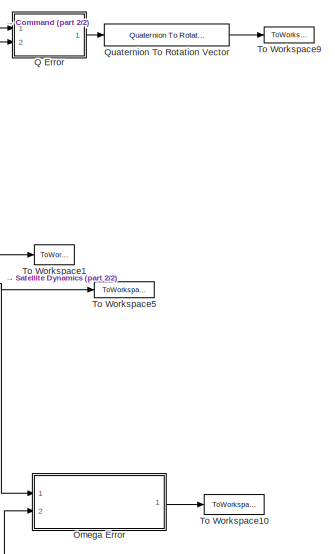
[diagram: root canvas - part 1/2, right side, full height]
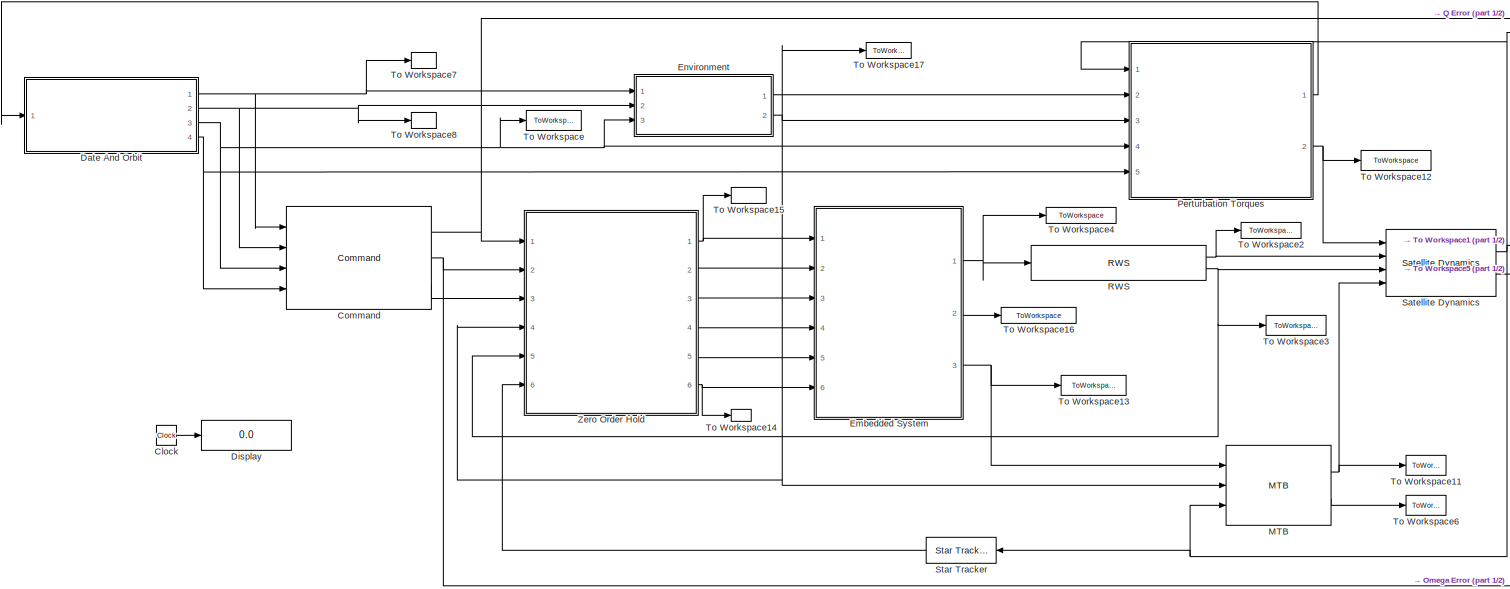
[diagram: root canvas - part 2/2, most of the canvas]
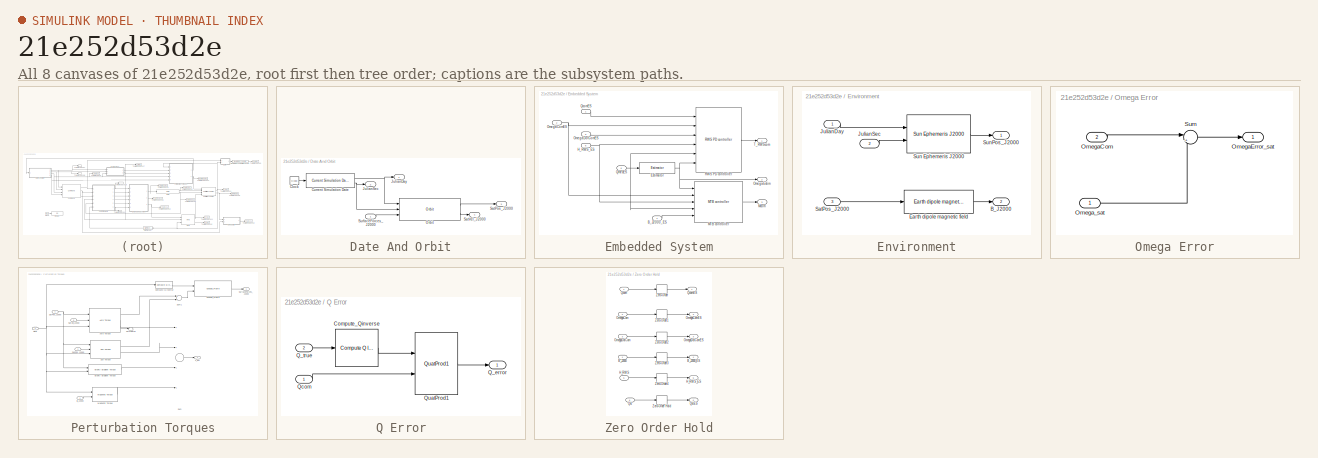
[diagram: thumbnail index - all 8 canvases of the model, root first then tree order]
MODEL slx_21e252d53d2e
KIND model
BLOCK [Clock] Clock
BLOCK [Reference] Command  REF=Command/Command
  Ports = [4, 3]
  SourceBlock = Command/Command
  SourceType = SubSystem
BLOCK [SubSystem] Date And Orbit
  Ports = [1, 4]
  RequestExecContextInheritance = off
BLOCK [Clock] Date And Orbit/Clock
  Decimation = 1/ConfParam.confOrbit.dt
BLOCK [Reference] Date And Orbit/Current Simulation Date  REF=Date/Current Simulation Date
  Ports = [1, 2]
  SourceBlock = Date/Current Simulation Date
  SourceType = SubSystem
BLOCK [Outport] Date And Orbit/JulianDay
  IconDisplay = Port number
BLOCK [Outport] Date And Orbit/JulianSec
  IconDisplay = Port number
  Port = 2
BLOCK [Reference] Date And Orbit/Orbit  REF=Orbit/Orbit
  Ports = [3, 2]
  SourceBlock = Orbit/Orbit
  SourceType = SubSystem
BLOCK [Outport] Date And Orbit/SatPos_J2000
  IconDisplay = Port number
  Port = 3
BLOCK [Outport] Date And Orbit/SatVel_J2000
  IconDisplay = Port number
  Port = 4
BLOCK [Inport] Date And Orbit/SurfaceForces_J2000
  IconDisplay = Port number
BLOCK [Display] Display
  Decimation = 1
  Ports = [1]
BLOCK [SubSystem] Embedded System
  Ports = [6, 3]
  RequestExecContextInheritance = off
BLOCK [Inport] Embedded System/B_J2000_ES
  IconDisplay = Port number
  Port = 4
BLOCK [Reference] Embedded System/Estimator  REF=Estimator/Estimator
  Ports = [1, 1]
  SourceBlock = Estimator/Estimator
  SourceType = SubSystem
BLOCK [Inport] Embedded System/H_RWS_ES
  IconDisplay = Port number
  Port = 5
BLOCK [Reference] Embedded System/MTB controller  REF=MTBcontroller/MTB controller
  Ports = [5, 1]
  SourceBlock = MTBcontroller/MTB controller
  SourceType = SubSystem
BLOCK [Outport] Embedded System/Mcom
  IconDisplay = Port number
  Port = 3
BLOCK [Inport] Embedded System/OmegaComES
  IconDisplay = Port number
  Port = 2
BLOCK [Inport] Embedded System/OmegaDotComES
  IconDisplay = Port number
  Port = 3
BLOCK [Outport] Embedded System/OmegaEstim
  IconDisplay = Port number
  Port = 2
BLOCK [Inport] Embedded System/QcomES
  IconDisplay = Port number
BLOCK [Inport] Embedded System/QmesES
  IconDisplay = Port number
  Port = 6
BLOCK [Reference] Embedded System/RWS PD controller  REF=RWS_PDcontroller/RWS PD controller
  Ports = [6, 1]
  SourceBlock = RWS_PDcontroller/RWS PD controller
  SourceType = SubSystem
BLOCK [Outport] Embedded System/T_RWScom
  IconDisplay = Port number
BLOCK [SubSystem] Environment
  Ports = [3, 2]
  RequestExecContextInheritance = off
BLOCK [Outport] Environment/B_J2000
  IconDisplay = Port number
  Port = 2
BLOCK [Reference] Environment/Earth dipole magnetic field  REF=DipoleField/Earth dipole magnetic field
  Ports = [1, 1]
  SourceBlock = DipoleField/Earth dipole magnetic field
  SourceType = SubSystem
BLOCK [Inport] Environment/JulianDay
  IconDisplay = Port number
BLOCK [Inport] Environment/JulianSec
  IconDisplay = Port number
  Port = 2
BLOCK [Inport] Environment/SatPos_J2000
  IconDisplay = Port number
  Port = 3
BLOCK [Reference] Environment/Sun Ephemeris J2000  REF=SunEphemeris_MathWorks/Sun Ephemeris J2000
  Ports = [2, 1]
  SourceBlock = SunEphemeris_MathWorks/Sun Ephemeris J2000
  SourceType = SubSystem
BLOCK [Outport] Environment/SunPos_J2000
  IconDisplay = Port number
BLOCK [Reference] MTB  REF=MTB/MTB
  Ports = [3, 2]
  SourceBlock = MTB/MTB
  SourceType = SubSystem
BLOCK [SubSystem] Omega Error
  Ports = [2, 1]
  RequestExecContextInheritance = off
BLOCK [Inport] Omega Error/OmegaCom
  IconDisplay = Port number
  Port = 2
BLOCK [Outport] Omega Error/OmegaError_sat
  IconDisplay = Port number
BLOCK [Inport] Omega Error/Omega_sat
  IconDisplay = Port number
BLOCK [Sum] Omega Error/Sum
  IconShape = round
  InputSameDT = off
  Inputs = |+-
  OutDataTypeStr = Inherit: Inherit via internal rule
  Ports = [2, 1]
  SaturateOnIntegerOverflow = off
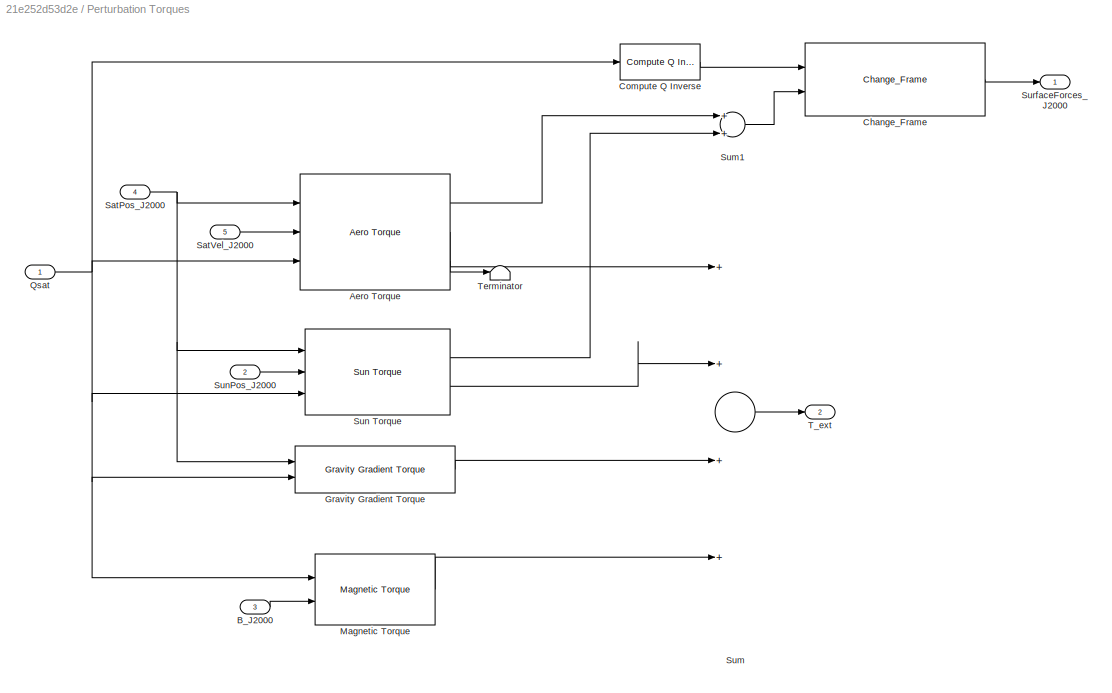
BLOCK [SubSystem] Perturbation Torques
  Ports = [5, 2]
  RequestExecContextInheritance = off
BLOCK [Reference] Perturbation Torques/Aero Torque  REF=AeroTorqueA/Aero Torque
  Ports = [3, 3]
  SourceBlock = AeroTorqueA/Aero Torque
  SourceType = SubSystem
BLOCK [Inport] Perturbation Torques/B_J2000
  IconDisplay = Port number
  Port = 3
BLOCK [Reference] Perturbation Torques/Change_Frame  REF=ChangeFrame/Change_Frame
  Ports = [2, 1]
  SourceBlock = ChangeFrame/Change_Frame
  SourceType = SubSystem
BLOCK [Reference] Perturbation Torques/Compute Q Inverse  REF=Qinverse/Compute Q Inverse
  Ports = [1, 1]
  SourceBlock = Qinverse/Compute Q Inverse
  SourceType = SubSystem
BLOCK [Reference] Perturbation Torques/Gravity Gradient Torque  REF=GravGradTorque/Gravity Gradient Torque
  Ports = [2, 1]
  SourceBlock = GravGradTorque/Gravity Gradient Torque
  SourceType = SubSystem
BLOCK [Reference] Perturbation Torques/Magnetic Torque  REF=MagnTorque/Magnetic Torque
  Ports = [2, 1]
  SourceBlock = MagnTorque/Magnetic Torque
  SourceType = SubSystem
BLOCK [Inport] Perturbation Torques/Qsat
  IconDisplay = Port number
BLOCK [Inport] Perturbation Torques/SatPos_J2000
  IconDisplay = Port number
  Port = 4
BLOCK [Inport] Perturbation Torques/SatVel_J2000
  IconDisplay = Port number
  Port = 5
BLOCK [Sum] Perturbation Torques/Sum
  InputSameDT = off
  Inputs = ++++
  OutDataTypeStr = Inherit: Inherit via internal rule
  Ports = [4, 1]
  SaturateOnIntegerOverflow = off
BLOCK [Sum] Perturbation Torques/Sum1
  InputSameDT = off
  OutDataTypeStr = Inherit: Inherit via internal rule
  Ports = [2, 1]
  SaturateOnIntegerOverflow = off
BLOCK [Reference] Perturbation Torques/Sun Torque  REF=SunTorqueA/Sun Torque
  Ports = [3, 2]
  SourceBlock = SunTorqueA/Sun Torque
  SourceType = SubSystem
BLOCK [Inport] Perturbation Torques/SunPos_J2000
  IconDisplay = Port number
  Port = 2
BLOCK [Outport] Perturbation Torques/SurfaceForces_J2000
  IconDisplay = Port number
BLOCK [Outport] Perturbation Torques/T_ext
  IconDisplay = Port number
  Port = 2
BLOCK [Terminator] Perturbation Torques/Terminator
BLOCK [SubSystem] Q Error
  Ports = [2, 1]
  RequestExecContextInheritance = off
BLOCK [Reference] Q Error/Compute_Qinverse  REF=Qinverse/Compute Q Inverse
  Ports = [1, 1]
  SourceBlock = Qinverse/Compute Q Inverse
  SourceType = SubSystem
BLOCK [Outport] Q Error/Q_error
  IconDisplay = Port number
BLOCK [Inport] Q Error/Q_true
  IconDisplay = Port number
  Port = 2
BLOCK [Inport] Q Error/Qcom
  IconDisplay = Port number
BLOCK [Reference] Q Error/QuatProd1  REF=Qprod/QuatProd1
  Ports = [2, 1]
  SourceBlock = Qprod/QuatProd1
  SourceType = SubSystem
BLOCK [Reference] Quaternion To Rotation Vector  REF=Quat2Rot/Quaternion To Rotation Vector
  Ports = [1, 1]
  SourceBlock = Quat2Rot/Quaternion To Rotation Vector
  SourceType = SubSystem
BLOCK [Reference] RWS  REF=RWS/RWS
  Ports = [1, 2]
  SourceBlock = RWS/RWS
  SourceType = SubSystem
BLOCK [Reference] Satellite Dynamics  REF=SatDyn/Satellite Dynamics
  Ports = [4, 2]
  SourceBlock = SatDyn/Satellite Dynamics
  SourceType = SubSystem
BLOCK [Reference] Star Tracker  REF=StarTracker/Star Tracker
  Ports = [1, 1]
  SourceBlock = StarTracker/Star Tracker
  SourceType = SubSystem
BLOCK [ToWorkspace] To Workspace
  FixptAsFi = on
  MaxDataPoints = inf
  Ports = [1]
  SampleTime = -1
  Save2DSignal = 3-D array (concatenate along third dimension)
  SaveFormat = Timeseries
  VariableName = SatPos
BLOCK [ToWorkspace] To Workspace1
  FixptAsFi = on
  MaxDataPoints = inf
  Ports = [1]
  SampleTime = -1
  Save2DSignal = 3-D array (concatenate along third dimension)
  SaveFormat = Timeseries
  VariableName = Qsat
BLOCK [ToWorkspace] To Workspace10
  FixptAsFi = on
  MaxDataPoints = inf
  Ports = [1]
  SampleTime = -1
  Save2DSignal = 3-D array (concatenate along third dimension)
  SaveFormat = Timeseries
  VariableName = OmegaErr
BLOCK [ToWorkspace] To Workspace11
  FixptAsFi = on
  MaxDataPoints = inf
  Ports = [1]
  SampleTime = -1
  Save2DSignal = 3-D array (concatenate along third dimension)
  SaveFormat = Timeseries
  VariableName = T_MTB
BLOCK [ToWorkspace] To Workspace12
  FixptAsFi = on
  MaxDataPoints = inf
  Ports = [1]
  SampleTime = -1
  Save2DSignal = 3-D array (concatenate along third dimension)
  SaveFormat = Timeseries
  VariableName = PertTorque
BLOCK [ToWorkspace] To Workspace13
  FixptAsFi = on
  MaxDataPoints = inf
  Ports = [1]
  SampleTime = -1
  Save2DSignal = 3-D array (concatenate along third dimension)
  SaveFormat = Timeseries
  VariableName = Mcom
BLOCK [ToWorkspace] To Workspace14
  FixptAsFi = on
  MaxDataPoints = inf
  Ports = [1]
  SampleTime = -1
  Save2DSignal = 3-D array (concatenate along third dimension)
  SaveFormat = Timeseries
  VariableName = Q
BLOCK [ToWorkspace] To Workspace15
  FixptAsFi = on
  MaxDataPoints = inf
  Ports = [1]
  SampleTime = -1
  Save2DSignal = 3-D array (concatenate along third dimension)
  SaveFormat = Timeseries
  VariableName = Qcom
BLOCK [ToWorkspace] To Workspace16
  FixptAsFi = on
  MaxDataPoints = inf
  Ports = [1]
  SampleTime = -1
  Save2DSignal = 3-D array (concatenate along third dimension)
  SaveFormat = Timeseries
  VariableName = OmegaEstim
BLOCK [ToWorkspace] To Workspace17
  FixptAsFi = on
  MaxDataPoints = inf
  Ports = [1]
  SampleTime = -1
  Save2DSignal = 3-D array (concatenate along third dimension)
  SaveFormat = Timeseries
  VariableName = B_J2000
BLOCK [ToWorkspace] To Workspace2
  FixptAsFi = on
  MaxDataPoints = inf
  Ports = [1]
  SampleTime = -1
  Save2DSignal = 3-D array (concatenate along third dimension)
  SaveFormat = Timeseries
  VariableName = Hdot_RWS
BLOCK [ToWorkspace] To Workspace3
  FixptAsFi = on
  MaxDataPoints = inf
  Ports = [1]
  SampleTime = -1
  Save2DSignal = 3-D array (concatenate along third dimension)
  SaveFormat = Timeseries
  VariableName = H_RWS
BLOCK [ToWorkspace] To Workspace4
  FixptAsFi = on
  MaxDataPoints = inf
  Ports = [1]
  SampleTime = -1
  Save2DSignal = 3-D array (concatenate along third dimension)
  SaveFormat = Timeseries
  VariableName = T_RWScom
BLOCK [ToWorkspace] To Workspace5
  FixptAsFi = on
  MaxDataPoints = inf
  Ports = [1]
  SampleTime = -1
  Save2DSignal = 3-D array (concatenate along third dimension)
  SaveFormat = Timeseries
  VariableName = OmegaSat
BLOCK [ToWorkspace] To Workspace6
  FixptAsFi = on
  MaxDataPoints = inf
  Ports = [1]
  SampleTime = -1
  Save2DSignal = 3-D array (concatenate along third dimension)
  SaveFormat = Timeseries
  VariableName = M
BLOCK [ToWorkspace] To Workspace7
  FixptAsFi = on
  MaxDataPoints = inf
  Ports = [1]
  SampleTime = -1
  Save2DSignal = 3-D array (concatenate along third dimension)
  SaveFormat = Timeseries
  VariableName = JD
BLOCK [ToWorkspace] To Workspace8
  FixptAsFi = on
  MaxDataPoints = inf
  Ports = [1]
  SampleTime = -1
  Save2DSignal = 3-D array (concatenate along third dimension)
  SaveFormat = Timeseries
  VariableName = JS
BLOCK [ToWorkspace] To Workspace9
  FixptAsFi = on
  MaxDataPoints = inf
  Ports = [1]
  SampleTime = -1
  Save2DSignal = 3-D array (concatenate along third dimension)
  SaveFormat = Timeseries
  VariableName = ThetaErr
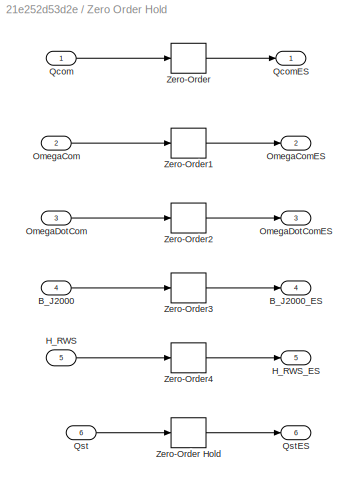
BLOCK [SubSystem] Zero Order Hold
  Ports = [6, 6]
  RequestExecContextInheritance = off
BLOCK [Inport] Zero Order Hold/B_J2000
  IconDisplay = Port number
  Port = 4
BLOCK [Outport] Zero Order Hold/B_J2000_ES
  IconDisplay = Port number
  Port = 4
BLOCK [Inport] Zero Order Hold/H_RWS
  IconDisplay = Port number
  Port = 5
BLOCK [Outport] Zero Order Hold/H_RWS_ES
  IconDisplay = Port number
  Port = 5
BLOCK [Inport] Zero Order Hold/OmegaCom
  IconDisplay = Port number
  Port = 2
BLOCK [Outport] Zero Order Hold/OmegaComES
  IconDisplay = Port number
  Port = 2
BLOCK [Inport] Zero Order Hold/OmegaDotCom
  IconDisplay = Port number
  Port = 3
BLOCK [Outport] Zero Order Hold/OmegaDotComES
  IconDisplay = Port number
  Port = 3
BLOCK [Inport] Zero Order Hold/Qcom
  IconDisplay = Port number
BLOCK [Outport] Zero Order Hold/QcomES
  IconDisplay = Port number
BLOCK [Inport] Zero Order Hold/Qst
  IconDisplay = Port number
  Port = 6
BLOCK [Outport] Zero Order Hold/QstES
  IconDisplay = Port number
  Port = 6
BLOCK [ZeroOrderHold] Zero Order Hold/Zero-Order
  SampleTime = 1/ConfParam.confES.frequency
BLOCK [ZeroOrderHold] Zero Order Hold/Zero-Order Hold
  SampleTime = 1/ConfParam.confES.frequency
BLOCK [ZeroOrderHold] Zero Order Hold/Zero-Order1
  SampleTime = 1/ConfParam.confES.frequency
BLOCK [ZeroOrderHold] Zero Order Hold/Zero-Order2
  SampleTime = 1/ConfParam.confES.frequency
BLOCK [ZeroOrderHold] Zero Order Hold/Zero-Order3
  SampleTime = 1/ConfParam.confES.frequency
BLOCK [ZeroOrderHold] Zero Order Hold/Zero-Order4
  SampleTime = 1/ConfParam.confES.frequency
LINE Clock:1 -> Display:1
NET Command:1 -> Q Error:1, Zero Order Hold:1
NET Command:2 -> Omega Error:2, Zero Order Hold:2
LINE Command:3 -> Zero Order Hold:3
LINE Date And Orbit/Clock:1 -> Date And Orbit/Current Simulation Date:1
NET Date And Orbit/Current Simulation Date:1 -> Date And Orbit/JulianDay:1, Date And Orbit/Orbit:1
NET Date And Orbit/Current Simulation Date:2 -> Date And Orbit/JulianSec:1, Date And Orbit/Orbit:2
LINE Date And Orbit/Orbit:1 -> Date And Orbit/SatPos_J2000:1
LINE Date And Orbit/Orbit:2 -> Date And Orbit/SatVel_J2000:1
LINE Date And Orbit/SurfaceForces_J2000:1 -> Date And Orbit/Orbit:3
NET Date And Orbit:1 -> Command:1, Environment:1, To Workspace7:1
NET Date And Orbit:2 -> Command:2, Environment:2, To Workspace8:1
NET Date And Orbit:3 -> Command:3, Environment:3, Perturbation Torques:4, To Workspace:1
NET Date And Orbit:4 -> Command:4, Perturbation Torques:5
LINE Embedded System/B_J2000_ES:1 -> Embedded System/MTB controller:5
NET Embedded System/Estimator:1 -> Embedded System/MTB controller:1, Embedded System/OmegaEstim:1, Embedded System/RWS PD controller:6
NET Embedded System/H_RWS_ES:1 -> Embedded System/MTB controller:3, Embedded System/RWS PD controller:4
LINE Embedded System/MTB controller:1 -> Embedded System/Mcom:1
NET Embedded System/OmegaComES:1 -> Embedded System/MTB controller:2, Embedded System/RWS PD controller:2
LINE Embedded System/OmegaDotComES:1 -> Embedded System/RWS PD controller:3
LINE Embedded System/QcomES:1 -> Embedded System/RWS PD controller:1
NET Embedded System/QmesES:1 -> Embedded System/Estimator:1, Embedded System/MTB controller:4, Embedded System/RWS PD controller:5
LINE Embedded System/RWS PD controller:1 -> Embedded System/T_RWScom:1
NET Embedded System:1 -> RWS:1, To Workspace4:1
LINE Embedded System:2 -> To Workspace16:1
NET Embedded System:3 -> MTB:1, To Workspace13:1
LINE Environment/Earth dipole magnetic field:1 -> Environment/B_J2000:1
LINE Environment/JulianDay:1 -> Environment/Sun Ephemeris J2000:1
LINE Environment/JulianSec:1 -> Environment/Sun Ephemeris J2000:2
LINE Environment/SatPos_J2000:1 -> Environment/Earth dipole magnetic field:1
LINE Environment/Sun Ephemeris J2000:1 -> Environment/SunPos_J2000:1
LINE Environment:1 -> Perturbation Torques:2
NET Environment:2 -> MTB:2, Perturbation Torques:3, To Workspace17:1, Zero Order Hold:4
NET MTB:1 -> Satellite Dynamics:4, To Workspace11:1
LINE MTB:2 -> To Workspace6:1
LINE Omega Error/OmegaCom:1 -> Omega Error/Sum:1
LINE Omega Error/Omega_sat:1 -> Omega Error/Sum:2
LINE Omega Error/Sum:1 -> Omega Error/OmegaError_sat:1
LINE Omega Error:1 -> To Workspace10:1
LINE Perturbation Torques/Aero Torque:1 -> Perturbation Torques/Sum1:1
LINE Perturbation Torques/Aero Torque:2 -> Perturbation Torques/Sum:1
LINE Perturbation Torques/Aero Torque:3 -> Perturbation Torques/Terminator:1
LINE Perturbation Torques/B_J2000:1 -> Perturbation Torques/Magnetic Torque:2
LINE Perturbation Torques/Change_Frame:1 -> Perturbation Torques/SurfaceForces_J2000:1
LINE Perturbation Torques/Compute Q Inverse:1 -> Perturbation Torques/Change_Frame:1
LINE Perturbation Torques/Gravity Gradient Torque:1 -> Perturbation Torques/Sum:3
LINE Perturbation Torques/Magnetic Torque:1 -> Perturbation Torques/Sum:4
NET Perturbation Torques/Qsat:1 -> Perturbation Torques/Aero Torque:3, Perturbation Torques/Compute Q Inverse:1, Perturbation Torques/Gravity Gradient Torque:2, Perturbation Torques/Magnetic Torque:1, Perturbation Torques/Sun Torque:3
NET Perturbation Torques/SatPos_J2000:1 -> Perturbation Torques/Aero Torque:1, Perturbation Torques/Gravity Gradient Torque:1, Perturbation Torques/Sun Torque:1
LINE Perturbation Torques/SatVel_J2000:1 -> Perturbation Torques/Aero Torque:2
LINE Perturbation Torques/Sum1:1 -> Perturbation Torques/Change_Frame:2
LINE Perturbation Torques/Sum:1 -> Perturbation Torques/T_ext:1
LINE Perturbation Torques/Sun Torque:1 -> Perturbation Torques/Sum1:2
LINE Perturbation Torques/Sun Torque:2 -> Perturbation Torques/Sum:2
LINE Perturbation Torques/SunPos_J2000:1 -> Perturbation Torques/Sun Torque:2
LINE Perturbation Torques:1 -> Date And Orbit:1
NET Perturbation Torques:2 -> Satellite Dynamics:1, To Workspace12:1
LINE Q Error/Compute_Qinverse:1 -> Q Error/QuatProd1:1
LINE Q Error/Q_true:1 -> Q Error/Compute_Qinverse:1
LINE Q Error/Qcom:1 -> Q Error/QuatProd1:2
LINE Q Error/QuatProd1:1 -> Q Error/Q_error:1
LINE Q Error:1 -> Quaternion To Rotation Vector:1
LINE Quaternion To Rotation Vector:1 -> To Workspace9:1
NET RWS:1 -> Satellite Dynamics:2, To Workspace2:1
NET RWS:2 -> Satellite Dynamics:3, To Workspace3:1, Zero Order Hold:5
NET Satellite Dynamics:1 -> MTB:3, Perturbation Torques:1, Q Error:2, Star Tracker:1, To Workspace1:1
NET Satellite Dynamics:2 -> Omega Error:1, To Workspace5:1
LINE Star Tracker:1 -> Zero Order Hold:6
LINE Zero Order Hold/B_J2000:1 -> Zero Order Hold/Zero-Order3:1
LINE Zero Order Hold/H_RWS:1 -> Zero Order Hold/Zero-Order4:1
LINE Zero Order Hold/OmegaCom:1 -> Zero Order Hold/Zero-Order1:1
LINE Zero Order Hold/OmegaDotCom:1 -> Zero Order Hold/Zero-Order2:1
LINE Zero Order Hold/Qcom:1 -> Zero Order Hold/Zero-Order:1
LINE Zero Order Hold/Qst:1 -> Zero Order Hold/Zero-Order Hold:1
LINE Zero Order Hold/Zero-Order Hold:1 -> Zero Order Hold/QstES:1
LINE Zero Order Hold/Zero-Order1:1 -> Zero Order Hold/OmegaComES:1
LINE Zero Order Hold/Zero-Order2:1 -> Zero Order Hold/OmegaDotComES:1
LINE Zero Order Hold/Zero-Order3:1 -> Zero Order Hold/B_J2000_ES:1
LINE Zero Order Hold/Zero-Order4:1 -> Zero Order Hold/H_RWS_ES:1
LINE Zero Order Hold/Zero-Order:1 -> Zero Order Hold/QcomES:1
NET Zero Order Hold:1 -> Embedded System:1, To Workspace15:1
LINE Zero Order Hold:2 -> Embedded System:2
LINE Zero Order Hold:3 -> Embedded System:3
LINE Zero Order Hold:4 -> Embedded System:4
LINE Zero Order Hold:5 -> Embedded System:5
NET Zero Order Hold:6 -> Embedded System:6, To Workspace14:1
note: NET lines group one-source signal fan-out (src -> all destinations, sorted); 1:1 wires keep LINE
